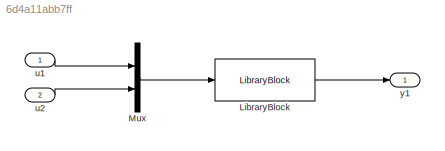
MODEL slx_6d4a11abb7ff
KIND model
CONFIG AbsTol = auto
CONFIG FixedStep = auto
CONFIG MaxStep = auto
CONFIG MinStep = auto
CONFIG RelTol = 1e-3
CONFIG SampleTimeConstraint = Unconstrained
CONFIG Solver = VariableStepAuto
CONFIG SolverMode = Auto
CONFIG SolverName = VariableStepAuto
CONFIG StartTime = 0.0
CONFIG StopTime = 10.0
BLOCK [Reference] LibraryBlock  REF=ExampleLibrary/LibraryBlock
  Ports = [1, 1]
  SourceBlock = ExampleLibrary/LibraryBlock
  SourceType = SubSystem
BLOCK [Mux] Mux
  DisplayOption = bar
  Inputs = 2
  Ports = [2, 1]
BLOCK [Inport] u1
  IconDisplay = Port number
BLOCK [Inport] u2
  IconDisplay = Port number
  Port = 2
BLOCK [Outport] y1
  IconDisplay = Port number
LINE LibraryBlock:1 -> y1:1
LINE Mux:1 -> LibraryBlock:1
LINE u1:1 -> Mux:1
LINE u2:1 -> Mux:2
